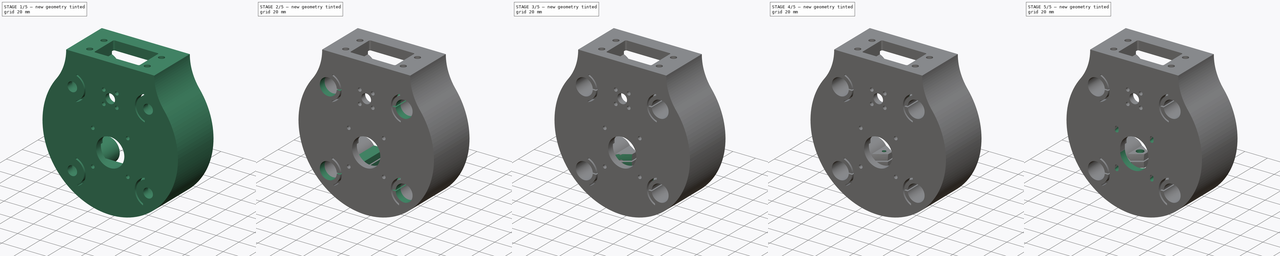
[diagram: build sequence overview — one tinted view per stage of 5, left to right]
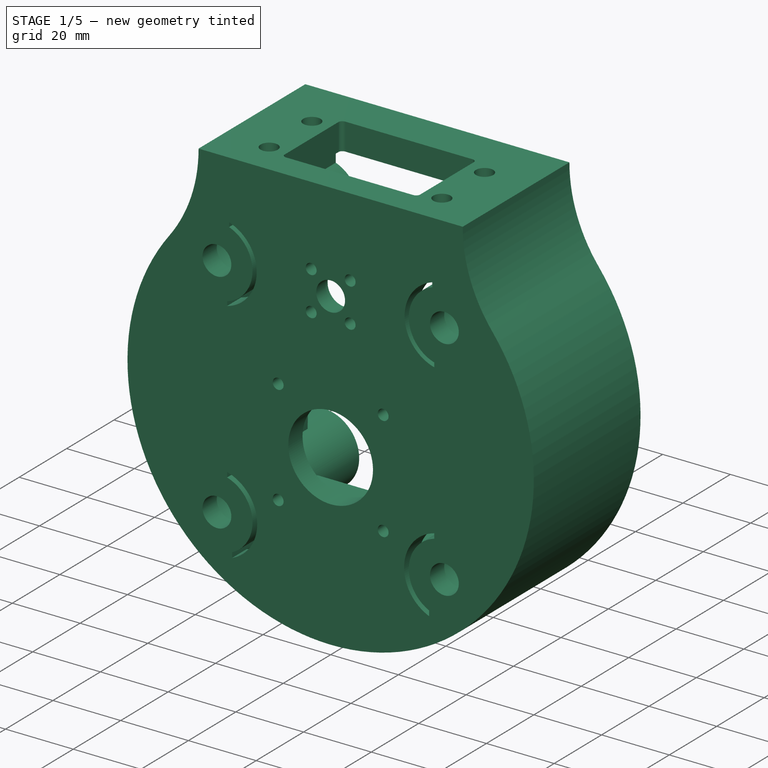
[diagram: stage 1 of 5 — iso view after this stage's code; geometry added in this stage tinted green]
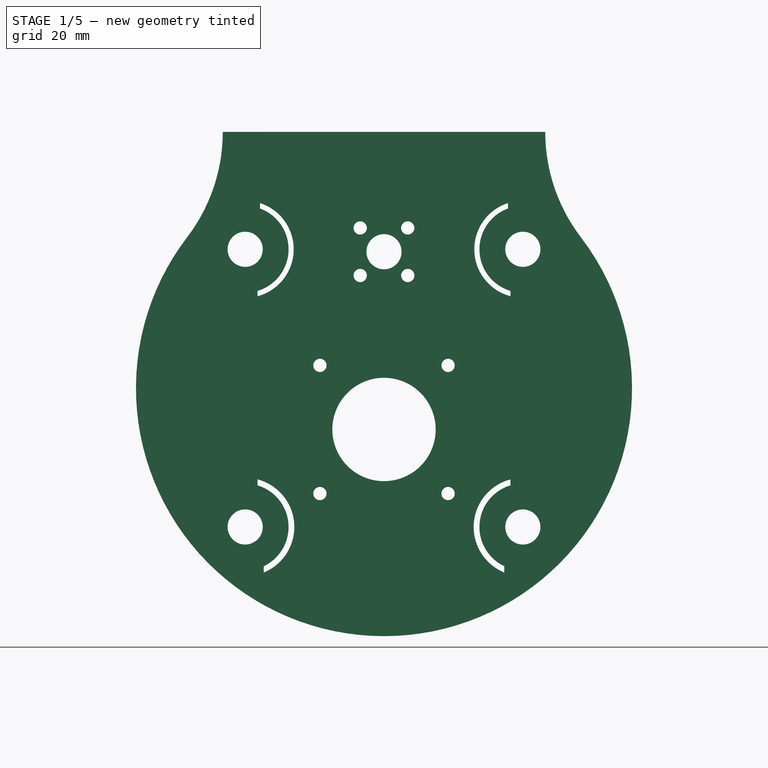
[diagram: stage 1 of 5 — front view after this stage's code; geometry added in this stage tinted green]
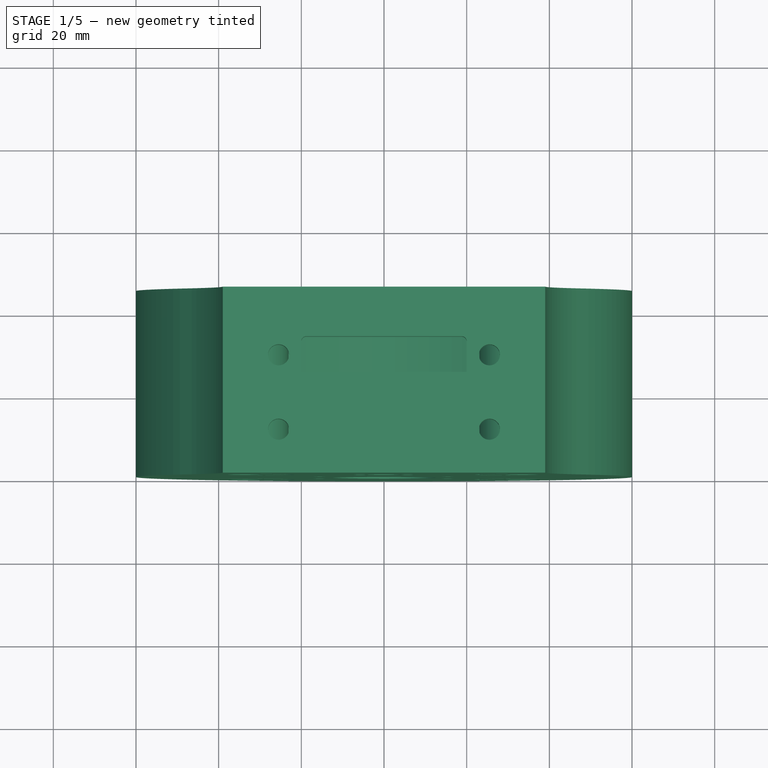
[diagram: stage 1 of 5 — top view after this stage's code; geometry added in this stage tinted green]
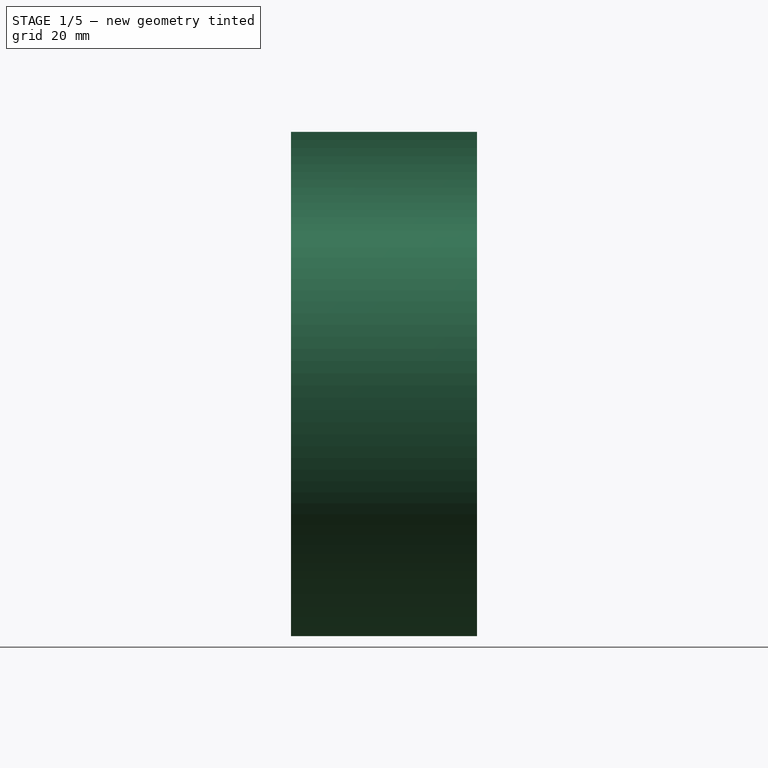
[diagram: stage 1 of 5 — right view after this stage's code; geometry added in this stage tinted green]
FCSTD DOCUMENT  (FreeCAD 0.19R)
Label: Z-axis_mount_platform_LM8
License: All rights reserved
LicenseURL: http://en.wikipedia.org/wiki/All_rights_reserved
objects: Sketcher::SketchObject×10, PartDesign::Pocket×7, PartDesign::Mirrored×6, PartDesign::Line×2, PartDesign::Groove×2, Part::Feature×1, PartDesign::FeatureBase×1, PartDesign::Pad×1, PartDesign::Plane×1, PartDesign::Body×1
note: 42 computed .brp shape members not serialized (recipe doc carries the construction recipe); baked Part::Feature solids carry a one-line shape summary decoded from their .brp

FEATURE [Part::Feature] Part__Feature  label="Z-axis Mount Platform LM8_Z-axis Mount Platform"
  shape: bbox 120 x 45 x 122 mm, 110 faces (baked)
FEATURE [PartDesign::FeatureBase] BaseFeature
  BaseFeature = -> Part__Feature
FEATURE [Sketcher::SketchObject] Sketch
  ExternalGeometry = -> [BaseFeature]
  FullyConstrained = false
  MapMode = 5
  Placement = pos=(0,45,0) rot=(0,0.707107,0.707107;3.14159rad)
  Support = -> [BaseFeature]
  sketch-geometry (8):
    g0: ArcOfCircle CenterX=-33.5876 CenterY=33.5876 CenterZ=0 NormalX=0 NormalY=0 NormalZ=1 AngleXU=0 Radius=11.7431 StartAngle=4.97072 EndAngle=7.54351
    g1: ArcOfCircle CenterX=-33.5876 CenterY=33.5876 CenterZ=0 NormalX=0 NormalY=0 NormalZ=1 AngleXU=0 Radius=10.5 StartAngle=5.00214 EndAngle=7.50528
    g2: LineSegment StartX=-30.5876 StartY=23.5253 StartZ=0 EndX=-30.5876 EndY=22.2342 EndZ=0
    g3: LineSegment StartX=-30 StartY=44.7692 StartZ=0 EndX=-30 EndY=43.4557 EndZ=0
    g4: ArcOfCircle CenterX=-33.5876 CenterY=-33.5876 CenterZ=0 NormalX=0 NormalY=0 NormalZ=1 AngleXU=0 Radius=11.8969 StartAngle=5.10007 EndAngle=7.59927
    g5: LineSegment StartX=-30.59 StartY=-22.0745 StartZ=0 EndX=-30.59 EndY=-23.5245 EndZ=0
    g6: ArcOfCircle CenterX=-33.5876 CenterY=-33.5876 CenterZ=0 NormalX=0 NormalY=0 NormalZ=1 AngleXU=0 Radius=10.5 StartAngle=5.15504 EndAngle=7.56447
    g7: LineSegment StartX=-29.09 StartY=-44.6015 StartZ=0 EndX=-29.09 EndY=-43.0756 EndZ=0
  constraints (24):
    c: Coincident(g0,g-3)
    c: Coincident(g1,g0)
    c: Coincident(g2,g1)
    c: Coincident(g2,g0)
    c: Coincident(g3,g0)
    c: Coincident(g3,g1)
    c: Vertical(g3)
    c: Vertical(g2)
    c: Radius(g1) = 10.5
    c: Coincident(g5,g4)
    c: Vertical(g5)
    c: Coincident(g6,g4)
    c: Coincident(g6,g5)
    c: Radius(g6) = 10.5
    c: DistanceX(g0) = -33.5876
    c: DistanceY(g0) = 33.5876
    c: DistanceX(g4) = -33.5876
    c: DistanceY(g4) = -33.5876
    c: DistanceX(g4) = -30.59
    c: DistanceY(g5,g5) = 1.45
    c: Coincident(g7,g4)
    c: Coincident(g7,g6)
    c: Vertical(g7)
    c: DistanceX(g4) = -29.09
FEATURE [PartDesign::Pocket] Pocket
  BaseFeature = -> BaseFeature
  Length = 5
  Length2 = 100
  Profile = -> Sketch
  Type = 1
FEATURE [PartDesign::Mirrored] Mirrored
  BaseFeature = -> Pocket
  MirrorPlane = -> Sketch [V_Axis]
  Originals = -> [Pocket]
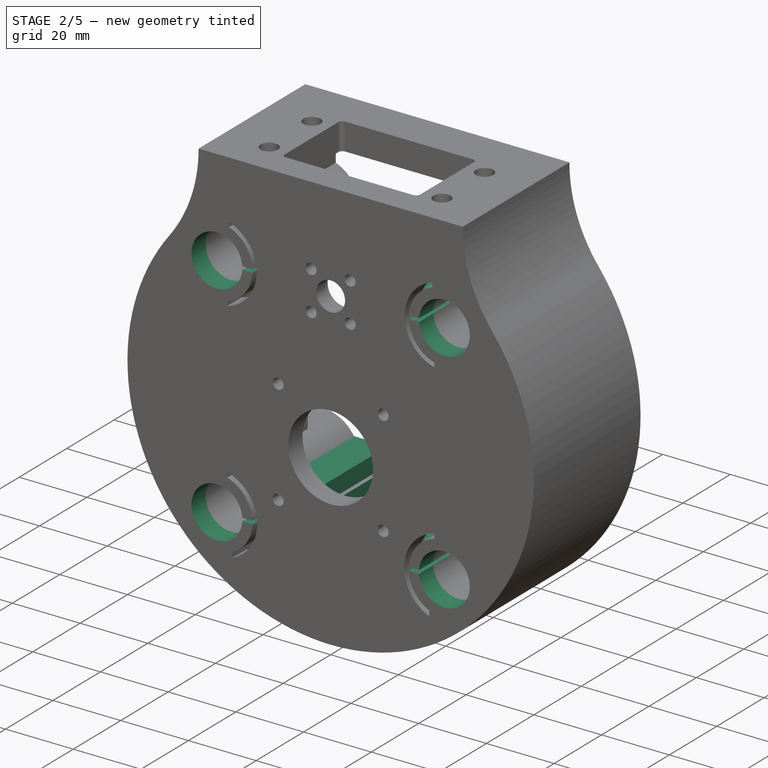
[diagram: stage 2 of 5 — iso view after this stage's code; geometry added in this stage tinted green]
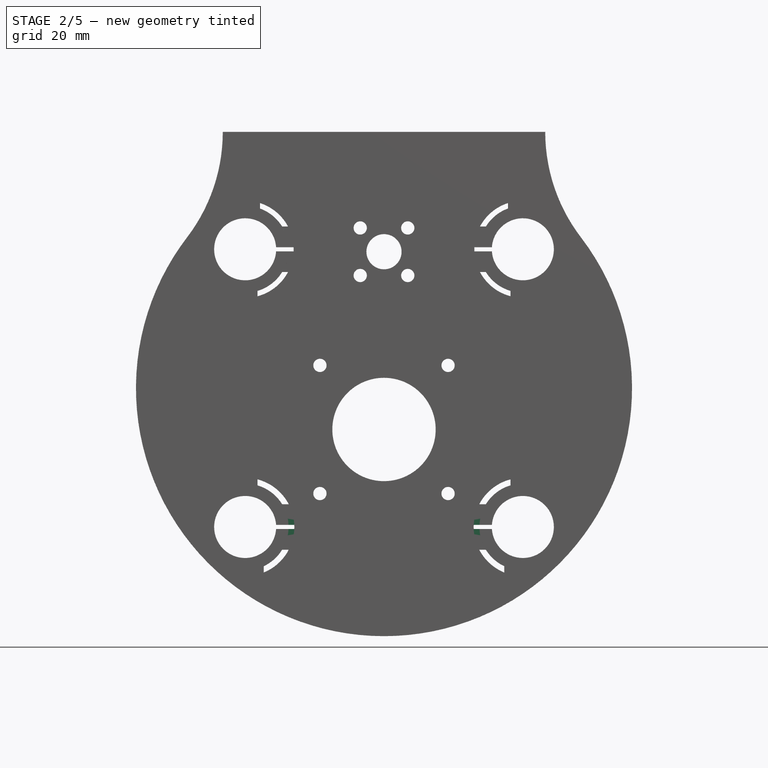
[diagram: stage 2 of 5 — front view after this stage's code; geometry added in this stage tinted green]
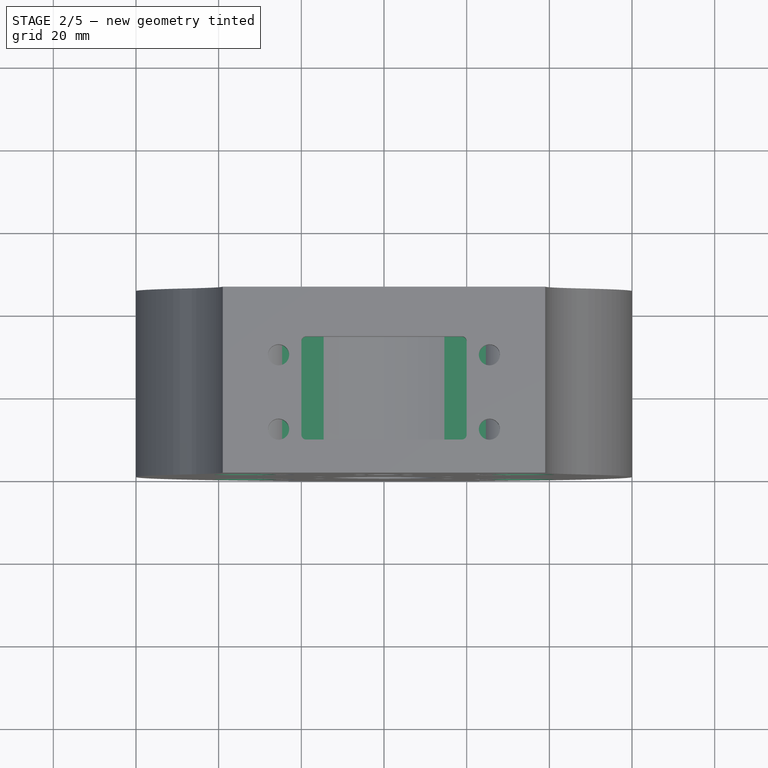
[diagram: stage 2 of 5 — top view after this stage's code; geometry added in this stage tinted green]
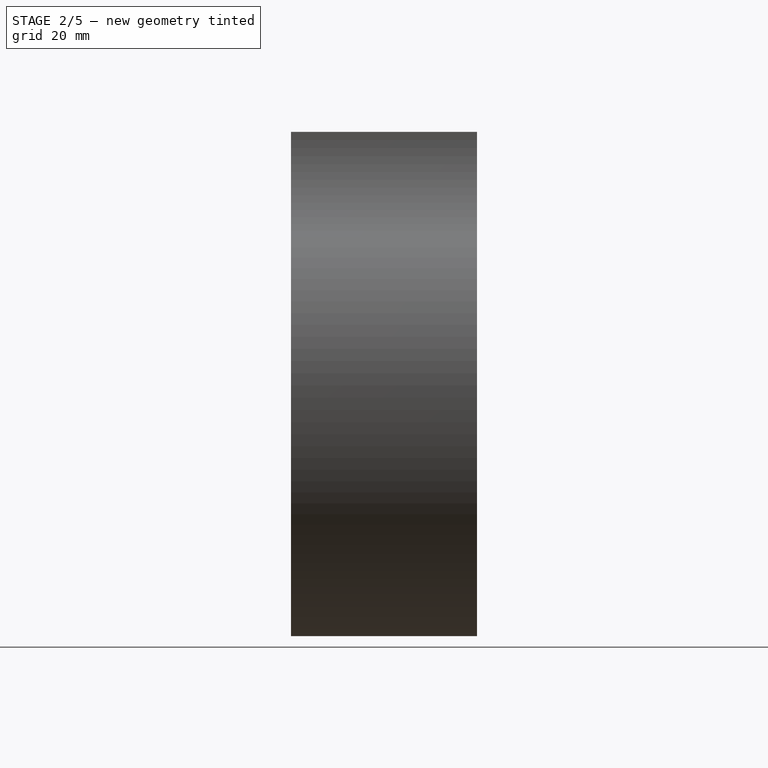
[diagram: stage 2 of 5 — right view after this stage's code; geometry added in this stage tinted green]
FEATURE [PartDesign::Pocket] Pocket001
  BaseFeature = -> Mirrored
  Length = 20
  Length2 = 100
  Profile = -> Mirrored [Face112]
  Type = 0
FEATURE [Sketcher::SketchObject] Sketch001
  ExternalGeometry = -> [Pocket001]
  FullyConstrained = true
  MapMode = 5
  Placement = pos=(0,45,0) rot=(0,0.707107,0.707107;3.14159rad)
  Support = -> [Pocket001]
  sketch-geometry (17):
    g0: LineSegment StartX=-26.1043 StartY=34.0876 StartZ=0 EndX=-22.5 EndY=34.0876 EndZ=0
    g1: LineSegment StartX=-22.5 StartY=34.0876 StartZ=0 EndX=-22.5 EndY=33.0876 EndZ=0
    g2: LineSegment StartX=-22.5 StartY=33.0876 StartZ=0 EndX=-26.1043 EndY=33.0876 EndZ=0
    g3: LineSegment StartX=22.5 StartY=34.0876 StartZ=0 EndX=26.1043 EndY=34.0876 EndZ=0
    g4: LineSegment StartX=26.1043 StartY=33.0876 StartZ=0 EndX=22.5 EndY=33.0876 EndZ=0
    g5: LineSegment StartX=22.5 StartY=33.0876 StartZ=0 EndX=22.5 EndY=34.0876 EndZ=0
    g6: LineSegment StartX=-26.1043 StartY=-33.0876 StartZ=0 EndX=-22.5 EndY=-33.0876 EndZ=0
    g7: LineSegment StartX=-22.5 StartY=-33.0876 StartZ=0 EndX=-22.5 EndY=-34.0876 EndZ=0
    g8: LineSegment StartX=-22.5 StartY=-34.0876 StartZ=0 EndX=-26.1043 EndY=-34.0876 EndZ=0
    g9: LineSegment StartX=22.5 StartY=-33.0876 StartZ=0 EndX=26.1043 EndY=-33.0876 EndZ=0
    g10: LineSegment StartX=26.1043 StartY=-34.0876 StartZ=0 EndX=22.5 EndY=-34.0876 EndZ=0
    g11: LineSegment StartX=22.5 StartY=-34.0876 StartZ=0 EndX=22.5 EndY=-33.0876 EndZ=0
    g12: ArcOfCircle CenterX=-33.5876 CenterY=33.5876 CenterZ=0 NormalX=0 NormalY=0 NormalZ=1 AngleXU=0 Radius=7.5 StartAngle=0.0667161 EndAngle=6.21647
    g13: ArcOfCircle CenterX=33.5876 CenterY=33.5876 CenterZ=0 NormalX=0 NormalY=0 NormalZ=1 AngleXU=0 Radius=7.5 StartAngle=3.20831 EndAngle=9.35806
    g14: ArcOfCircle CenterX=33.5876 CenterY=-33.5876 CenterZ=0 NormalX=0 NormalY=0 NormalZ=1 AngleXU=0 Radius=7.5 StartAngle=3.20831 EndAngle=9.35806
    g15: ArcOfCircle CenterX=-33.5876 CenterY=-33.5876 CenterZ=0 NormalX=0 NormalY=0 NormalZ=1 AngleXU=0 Radius=7.5 StartAngle=0.0667161 EndAngle=6.21647
    g16: LineSegment StartX=-33.5876 StartY=33.5876 StartZ=0 EndX=-22.5 EndY=33.5876 EndZ=0
  constraints (47):
    c: Coincident(g0,g1)
    c: Coincident(g1,g2)
    c: Horizontal(g0)
    c: Horizontal(g2)
    c: Vertical(g1)
    c: Coincident(g4,g5)
    c: Coincident(g5,g3)
    c: Horizontal(g3)
    c: Horizontal(g4)
    c: Vertical(g5)
    c: Coincident(g6,g7)
    c: Coincident(g7,g8)
    c: Horizontal(g6)
    c: Horizontal(g8)
    c: Vertical(g7)
    c: Coincident(g10,g11)
    c: Coincident(g11,g9)
    c: Horizontal(g9)
    c: Horizontal(g10)
    c: Vertical(g11)
    c: Coincident(g12,g-3)
    c: Coincident(g13,g-4)
    c: Coincident(g14,g-6)
    c: Coincident(g15,g-5)
    c: PointOnObject(g3,g0)
    c: Symmetric(g6,g1,g-1)
    c: Equal(g5,g11)
    c: Equal(g11,g7)
    c: DistanceY(g1,g1) = 1
    c: Radius(g12) = 7.5
    c: Equal(g12,g13)
    c: Equal(g13,g15)
    c: Equal(g15,g14)
    c: Symmetric(g4,g1,g-2)
    c: DistanceX(g0,g3) = 45
    c: Coincident(g16,g12)
    c: Horizontal(g16)
    c: Symmetric(g0,g1,g16)
    c: Coincident(g12,g0)
    c: Coincident(g12,g2)
    c: Coincident(g13,g4)
    c: Coincident(g13,g3)
    c: Coincident(g14,g10)
    c: Coincident(g14,g9)
    c: Coincident(g15,g6)
    c: Coincident(g15,g8)
    c: Symmetric(g6,g9,g-2)
FEATURE [PartDesign::Pocket] Pocket002
  BaseFeature = -> Pocket001
  Length = 5
  Length2 = 100
  Profile = -> Sketch001
  Type = 1
FEATURE [Sketcher::SketchObject] Sketch002
  ExternalGeometry = -> [Pocket002]
  FullyConstrained = true
  MapMode = 5
  Placement = pos=(0,45,0) rot=(0,0.707107,0.707107;3.14159rad)
  Support = -> [Pocket002]
  sketch-geometry (18):
    g0: LineSegment StartX=-24.6433 StartY=39.0876 StartZ=0 EndX=-14.5995 EndY=39.0876 EndZ=0
    g1: LineSegment StartX=-14.5995 StartY=39.0876 StartZ=0 EndX=-14.5995 EndY=34.0876 EndZ=0
    g2: LineSegment StartX=-14.5995 StartY=34.0876 StartZ=0 EndX=-23.0995 EndY=34.0876 EndZ=0
    g3: LineSegment StartX=-23.0995 StartY=34.0876 StartZ=0 EndX=-23.0995 EndY=33.0876 EndZ=0
    g4: LineSegment StartX=-23.0995 StartY=33.0876 StartZ=0 EndX=-14.5995 EndY=33.0876 EndZ=0
    g5: LineSegment StartX=-14.5995 StartY=33.0876 StartZ=0 EndX=-14.5995 EndY=28.0876 EndZ=0
    g6: LineSegment StartX=-14.5995 StartY=28.0876 StartZ=0 EndX=-24.6433 EndY=28.0876 EndZ=0
    g7: ArcOfCircle CenterX=-33.5876 CenterY=33.5876 CenterZ=0 NormalX=0 NormalY=0 NormalZ=1 AngleXU=0 Radius=10.5 StartAngle=0.0476371 EndAngle=0.551317
    g8: ArcOfCircle CenterX=-33.5876 CenterY=33.5876 CenterZ=0 NormalX=0 NormalY=0 NormalZ=1 AngleXU=0 Radius=10.5 StartAngle=5.73187 EndAngle=6.23555
    g9: LineSegment StartX=-23.0995 StartY=-33.0876 StartZ=0 EndX=-14.5995 EndY=-33.0876 EndZ=0
    g10: LineSegment StartX=-14.5995 StartY=-33.0876 StartZ=0 EndX=-14.5995 EndY=-28.0876 EndZ=0
    g11: LineSegment StartX=-14.5995 StartY=-28.0876 StartZ=0 EndX=-24.6433 EndY=-28.0876 EndZ=0
    g12: LineSegment StartX=-23.0995 StartY=-33.0876 StartZ=0 EndX=-23.0995 EndY=-34.0876 EndZ=0
    g13: LineSegment StartX=-23.0995 StartY=-34.0876 StartZ=0 EndX=-14.5995 EndY=-34.0876 EndZ=0
    g14: LineSegment StartX=-14.5995 StartY=-34.0876 StartZ=0 EndX=-14.5995 EndY=-39.0876 EndZ=0
    g15: LineSegment StartX=-14.5995 StartY=-39.0876 StartZ=0 EndX=-24.6433 EndY=-39.0876 EndZ=0
    g16: ArcOfCircle CenterX=-33.5876 CenterY=-33.5876 CenterZ=0 NormalX=0 NormalY=0 NormalZ=1 AngleXU=0 Radius=10.5 StartAngle=0.0476371 EndAngle=0.551317
    g17: ArcOfCircle CenterX=-33.5876 CenterY=-33.5876 CenterZ=0 NormalX=0 NormalY=0 NormalZ=1 AngleXU=0 Radius=10.5 StartAngle=5.73187 EndAngle=6.23555
  constraints (50):
    c: Horizontal(g0)
    c: Coincident(g0,g1)
    c: Vertical(g1)
    c: Coincident(g1,g2)
    c: Horizontal(g2)
    c: Coincident(g2,g3)
    c: Vertical(g3)
    c: Coincident(g3,g4)
    c: Horizontal(g4)
    c: Coincident(g4,g5)
    c: Vertical(g5)
    c: Coincident(g5,g6)
    c: Horizontal(g6)
    c: Coincident(g2,g-4)
    c: DistanceY(g3,g3) = 1
    c: Coincident(g7,g-3)
    c: Coincident(g7,g2)
    c: Coincident(g7,g0)
    c: Coincident(g8,g7)
    c: Coincident(g8,g6)
    c: Coincident(g8,g4)
    c: DistanceY(g1,g1) = 5
    c: Equal(g5,g1)
    c: PointOnObject(g4,g1)
    c: DistanceX(g2,g2) = 8.5
    c: Coincident(g-6,g9)
    c: Horizontal(g9)
    c: Coincident(g9,g10)
    c: Vertical(g10)
    c: Coincident(g10,g11)
    c: Horizontal(g11)
    c: Coincident(g9,g12)
    c: Vertical(g12)
    c: Coincident(g12,g13)
    c: Horizontal(g13)
    c: Coincident(g13,g14)
    c: Coincident(g14,g15)
    c: Horizontal(g15)
    c: Coincident(g16,g-5)
    c: Coincident(g16,g11)
    c: Coincident(g16,g9)
    c: Coincident(g17,g16)
    c: Coincident(g17,g12)
    c: Coincident(g17,g15)
    c: Vertical(g14)
    c: PointOnObject(g13,g10)
    c: DistanceY(g10,g10) = 5
    c: Equal(g10,g14)
    c: DistanceY(g12,g12) = 1
    c: PointOnObject(g10,g5)
FEATURE [PartDesign::Pad] Pad
  BaseFeature = -> Pocket002
  Direction = (1,1,1)
  Length = 38.99
  Length2 = 100
  Profile = -> Sketch002
  Reversed = true
  Type = 0
FEATURE [PartDesign::Mirrored] Mirrored001
  BaseFeature = -> Pad
  MirrorPlane = -> Sketch002 [V_Axis]
  Originals = -> [Pad]
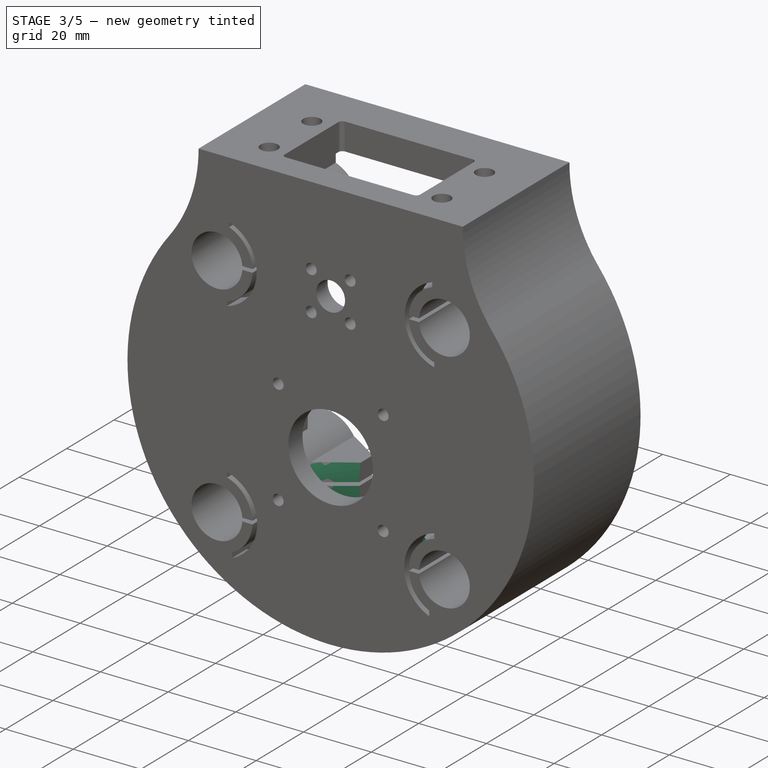
[diagram: stage 3 of 5 — iso view after this stage's code; geometry added in this stage tinted green]
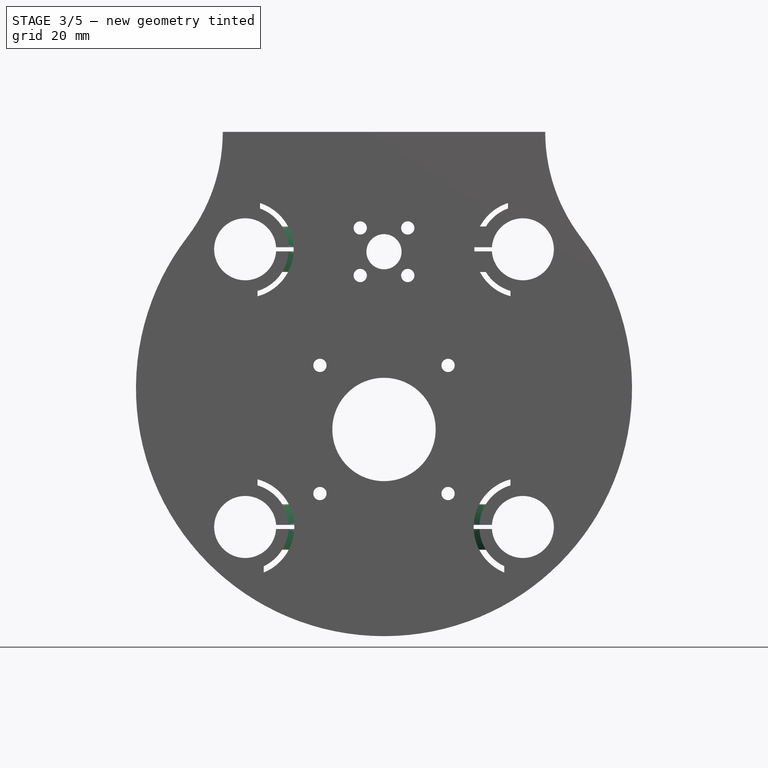
[diagram: stage 3 of 5 — front view after this stage's code; geometry added in this stage tinted green]
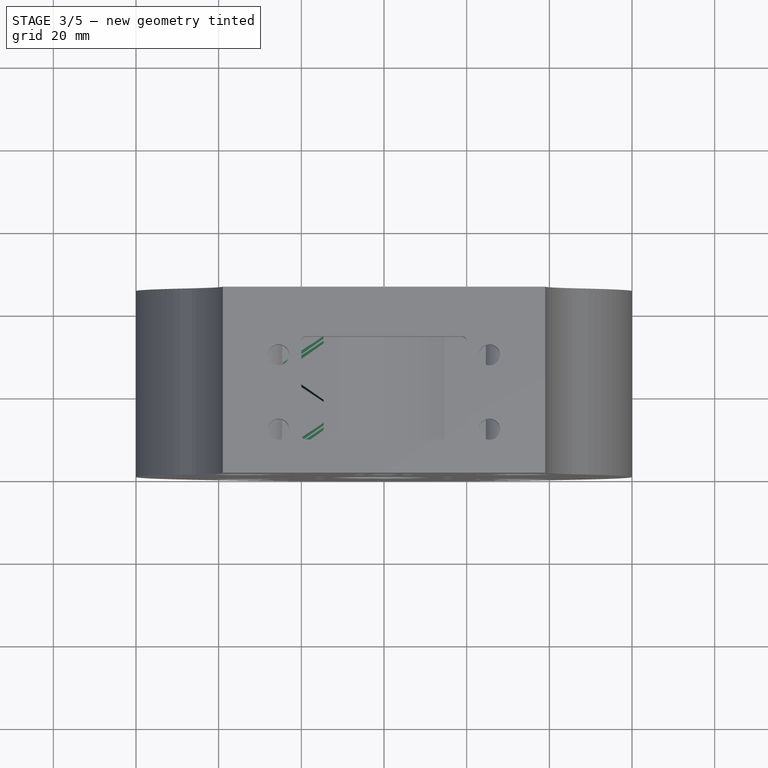
[diagram: stage 3 of 5 — top view after this stage's code; geometry added in this stage tinted green]
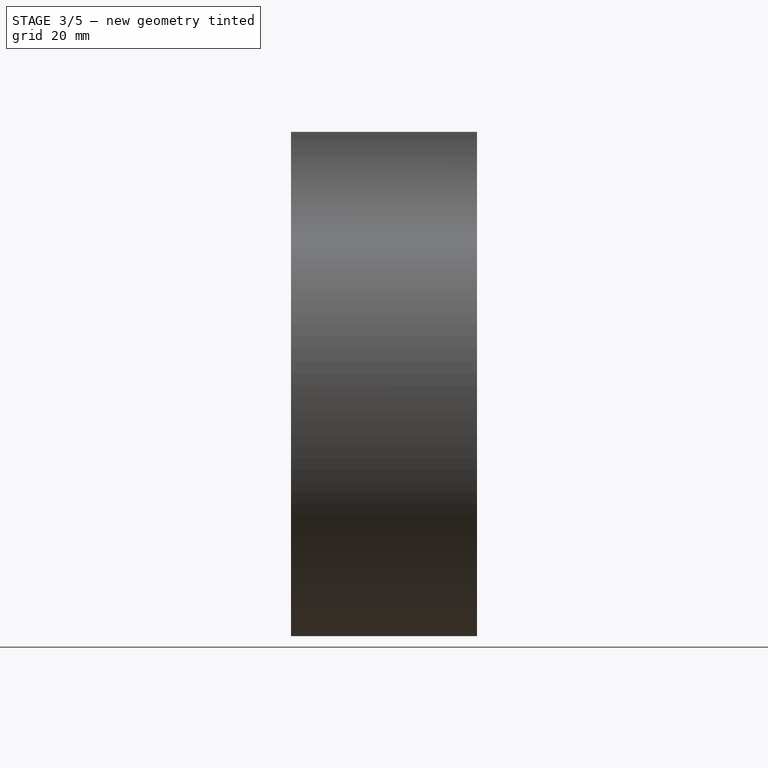
[diagram: stage 3 of 5 — right view after this stage's code; geometry added in this stage tinted green]
FEATURE [PartDesign::Plane] DatumPlane
  AttachmentOffset = pos=(0,0,0.5) rot=(0,0,1;0rad)
  Length = 138.268
  MapMode = 5
  Placement = pos=(0,-7.4e-15,-33.5876) rot=(0,0,1;0rad)
  ResizeMode = 0
  Support = -> [Mirrored001]
  Width = 88.3259
FEATURE [Sketcher::SketchObject] Sketch003
  ExternalGeometry = -> [Mirrored001]
  FullyConstrained = true
  MapMode = 5
  Placement = pos=(0,-7.4e-15,-33.5876) rot=(0,0,1;0rad)
  Support = -> [DatumPlane]
  sketch-geometry (2):
    g0: LineSegment StartX=-33.5876 StartY=45 StartZ=0 EndX=-33.5876 EndY=0 EndZ=0
    g1: LineSegment StartX=33.5876 StartY=45 StartZ=0 EndX=33.5876 EndY=0 EndZ=0
  constraints (6):
    c: Coincident(g0,g-3)
    c: PointOnObject(g0,g-1)
    c: Vertical(g0)
    c: Coincident(g1,g-4)
    c: PointOnObject(g1,g-1)
    c: Vertical(g1)
FEATURE [PartDesign::Line] DatumLine
  AttacherType = Attacher::AttachEngineLine
  Length = 20
  MapMode = 29
  Placement = pos=(-33.5876,-7.1e-15,-33.5876) rot=(1,0,0;1.5708rad)
  ResizeMode = 0
  Support = -> [Sketch003]
FEATURE [PartDesign::Line] DatumLine001
  AttacherType = Attacher::AttachEngineLine
  Length = 20
  MapMode = 29
  Placement = pos=(33.5876,-7.1e-15,-33.5876) rot=(1,0,0;1.5708rad)
  ResizeMode = 0
  Support = -> [Sketch003]
FEATURE [Sketcher::SketchObject] Sketch004
  ExternalGeometry = -> [Mirrored001]
  FullyConstrained = true
  MapMode = 5
  Placement = pos=(0,-7.4e-15,-33.5876) rot=(0,0,1;0rad)
  Support = -> [DatumPlane]
  sketch-geometry (14):
    g0: LineSegment StartX=-23.0776 StartY=45 StartZ=0 EndX=-13.5776 EndY=45 EndZ=0
    g1: LineSegment StartX=-13.5776 StartY=45 StartZ=0 EndX=-13.5776 EndY=38.348 EndZ=0
    g2: LineSegment StartX=-13.5776 StartY=38.348 StartZ=0 EndX=-23.0776 EndY=45 EndZ=0
    g3: LineSegment StartX=-23.0776 StartY=45 StartZ=0 EndX=-23.0776 EndY=27.005 EndZ=0
    g4: LineSegment StartX=-23.0776 StartY=27.005 StartZ=0 EndX=-13.5776 EndY=33.657 EndZ=0
    g5: LineSegment StartX=-13.5776 StartY=33.657 StartZ=0 EndX=-13.5776 EndY=17.353 EndZ=0
    g6: LineSegment StartX=-13.5776 StartY=17.353 StartZ=0 EndX=-23.0776 EndY=24.005 EndZ=0
    g7: LineSegment StartX=-23.0776 StartY=24.005 StartZ=0 EndX=-23.0776 EndY=27.005 EndZ=0
    g8: LineSegment StartX=-23.0776 StartY=24.005 StartZ=0 EndX=-23.0776 EndY=6.01 EndZ=0
    g9: LineSegment StartX=-23.0776 StartY=6.01 StartZ=0 EndX=-13.5776 EndY=6.01 EndZ=0
    g10: LineSegment StartX=-13.5776 StartY=6.01 StartZ=0 EndX=-13.5776 EndY=12.662 EndZ=0
    g11: LineSegment StartX=-13.5776 StartY=12.662 StartZ=0 EndX=-23.0776 EndY=6.01 EndZ=0
    g12: LineSegment StartX=-13.5776 StartY=12.662 StartZ=0 EndX=-13.5776 EndY=17.353 EndZ=0
    g13: LineSegment StartX=-13.5776 StartY=33.657 StartZ=0 EndX=-13.5776 EndY=38.348 EndZ=0
  constraints (38):
    c: Coincident(g0,g1)
    c: Vertical(g1)
    c: Coincident(g1,g2)
    c: Coincident(g2,g0)
    c: Coincident(g0,g3)
    c: Vertical(g3)
    c: Coincident(g3,g4)
    c: Coincident(g4,g5)
    c: Vertical(g5)
    c: Coincident(g5,g6)
    c: Coincident(g6,g7)
    c: Coincident(g7,g3)
    c: Vertical(g7)
    c: Coincident(g6,g8)
    c: Vertical(g8)
    c: Coincident(g8,g9)
    c: Coincident(g9,g10)
    c: Vertical(g10)
    c: Coincident(g10,g11)
    c: Coincident(g11,g8)
    c: Coincident(g12,g10)
    c: Coincident(g12,g5)
    c: Vertical(g12)
    c: Coincident(g13,g4)
    c: Vertical(g13)
    c: Coincident(g1,g13)
    c: Equal(g3,g8)
    c: Equal(g13,g12)
    c: Equal(g1,g10)
    c: Horizontal(g0)
    c: Horizontal(g9)
    c: DistanceY(g7,g7) = 3
    c: DistanceY(g9,g0) = 38.99
    c: Angle(g9,g11) = 0.610865
    c: DistanceX(g0,g0) = 9.5
    c: DistanceY(g9) = 6.01
    c: Angle(g6,g11) = 1.22173
    c: DistanceX(g-3,g0) = 10.51
FEATURE [PartDesign::Groove] Groove
  Angle = 90
  Axis = (0,-1,2e-16)
  Base = (-33.5876,-7.1e-15,-33.5876)
  BaseFeature = -> Mirrored001
  Midplane = true
  Profile = -> Sketch004
  ReferenceAxis = -> DatumLine
  Reversed = true
FEATURE [PartDesign::Mirrored] Mirrored002
  BaseFeature = -> Groove
  MirrorPlane = -> XY_Plane
  Originals = -> [Groove]
FEATURE [Sketcher::SketchObject] Sketch005
  ExternalGeometry = -> [Mirrored002]
  FullyConstrained = true
  MapMode = 5
  Placement = pos=(0,-7.4e-15,-33.5876) rot=(0,0,1;0rad)
  Support = -> [DatumPlane]
  sketch-geometry (14):
    g0: LineSegment StartX=23.0776 StartY=45 StartZ=0 EndX=13.5776 EndY=45 EndZ=0
    g1: LineSegment StartX=13.5776 StartY=45 StartZ=0 EndX=13.5776 EndY=38.348 EndZ=0
    g2: LineSegment StartX=13.5776 StartY=38.348 StartZ=0 EndX=23.0776 EndY=45 EndZ=0
    g3: LineSegment StartX=23.0776 StartY=45 StartZ=0 EndX=23.0776 EndY=27.005 EndZ=0
    g4: LineSegment StartX=23.0776 StartY=27.005 StartZ=0 EndX=13.5776 EndY=33.657 EndZ=0
    g5: LineSegment StartX=13.5776 StartY=33.657 StartZ=0 EndX=13.5776 EndY=17.353 EndZ=0
    g6: LineSegment StartX=13.5776 StartY=17.353 StartZ=0 EndX=23.0776 EndY=24.005 EndZ=0
    g7: LineSegment StartX=23.0776 StartY=24.005 StartZ=0 EndX=23.0776 EndY=6.01 EndZ=0
    g8: LineSegment StartX=23.0776 StartY=6.01 StartZ=0 EndX=13.5776 EndY=6.01 EndZ=0
    g9: LineSegment StartX=13.5776 StartY=6.01 StartZ=0 EndX=13.5776 EndY=12.662 EndZ=0
    g10: LineSegment StartX=13.5776 StartY=12.662 StartZ=0 EndX=23.0776 EndY=6.01 EndZ=0
    g11: LineSegment StartX=13.5776 StartY=38.348 StartZ=0 EndX=13.5776 EndY=33.657 EndZ=0
    g12: LineSegment StartX=13.5776 StartY=17.353 StartZ=0 EndX=13.5776 EndY=12.662 EndZ=0
    g13: LineSegment StartX=23.0776 StartY=27.005 StartZ=0 EndX=23.0776 EndY=24.005 EndZ=0
  constraints (38):
    c: Horizontal(g0)
    c: Coincident(g0,g1)
    c: Vertical(g1)
    c: Coincident(g1,g2)
    c: Coincident(g2,g0)
    c: Coincident(g0,g3)
    c: Vertical(g3)
    c: Coincident(g3,g4)
    c: Coincident(g4,g5)
    c: Vertical(g5)
    c: Coincident(g5,g6)
    c: Coincident(g6,g7)
    c: Vertical(g7)
    c: Coincident(g7,g8)
    c: Coincident(g8,g9)
    c: Vertical(g9)
    c: Coincident(g9,g10)
    c: Coincident(g10,g7)
    c: Coincident(g11,g1)
    c: Coincident(g11,g4)
    c: Coincident(g12,g5)
    c: Coincident(g12,g9)
    c: Coincident(g13,g3)
    c: Coincident(g13,g6)
    c: Vertical(g13)
    c: Vertical(g12)
    c: Vertical(g11)
    c: Horizontal(g8)
    c: Equal(g11,g12)
    c: Equal(g3,g7)
    c: Angle(g10,g8) = 0.610865
    c: DistanceY(g13,g13) = 3
    c: DistanceY(g8,g0) = 38.99
    c: DistanceY(g8) = 6.01
    c: DistanceX(g0,g0) = 9.5
    c: Equal(g1,g9)
    c: DistanceX(g0,g-3) = 10.51
    c: Angle(g10,g6) = 1.22173
FEATURE [PartDesign::Groove] Groove001
  Angle = 90
  Axis = (0,-1,2e-16)
  Base = (33.5876,-7.1e-15,-33.5876)
  BaseFeature = -> Mirrored002
  Midplane = true
  Profile = -> Sketch005
  ReferenceAxis = -> DatumLine001
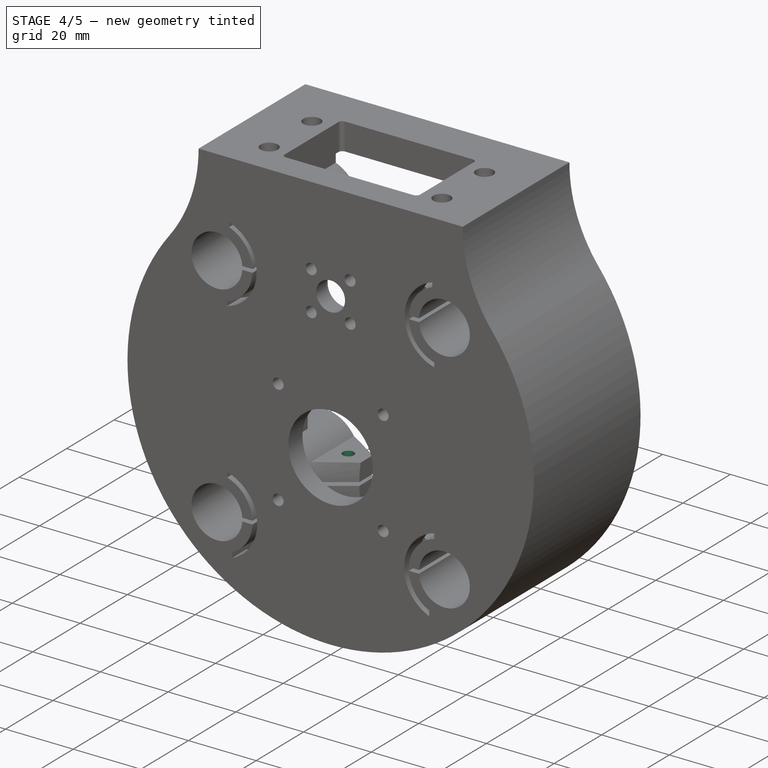
[diagram: stage 4 of 5 — iso view after this stage's code; geometry added in this stage tinted green]
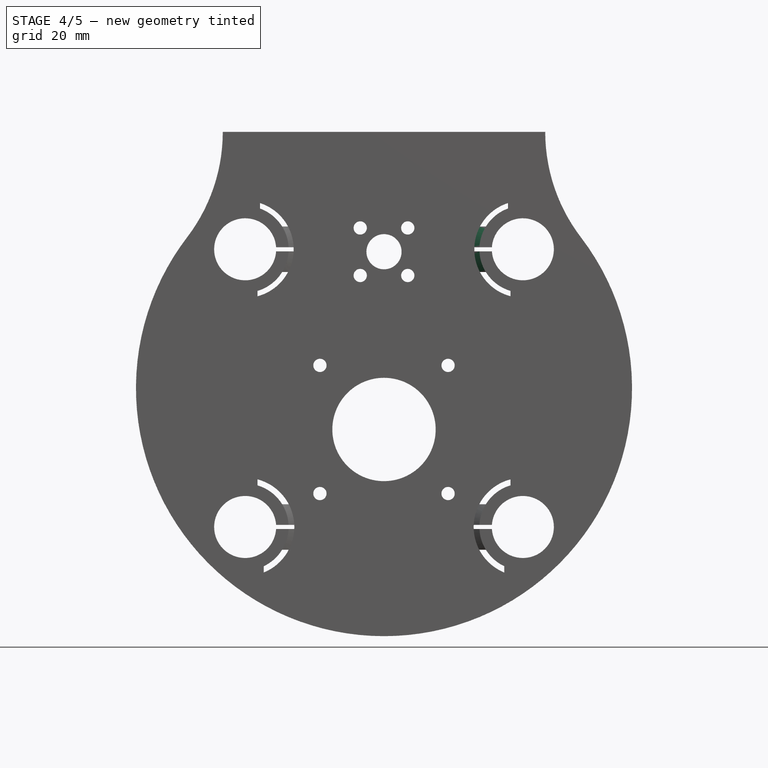
[diagram: stage 4 of 5 — front view after this stage's code; geometry added in this stage tinted green]
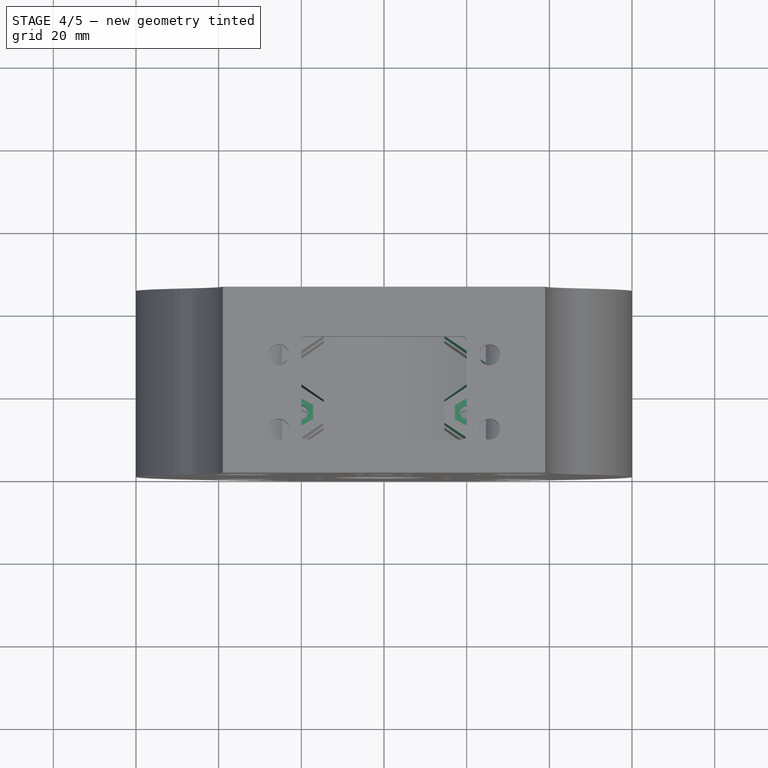
[diagram: stage 4 of 5 — top view after this stage's code; geometry added in this stage tinted green]
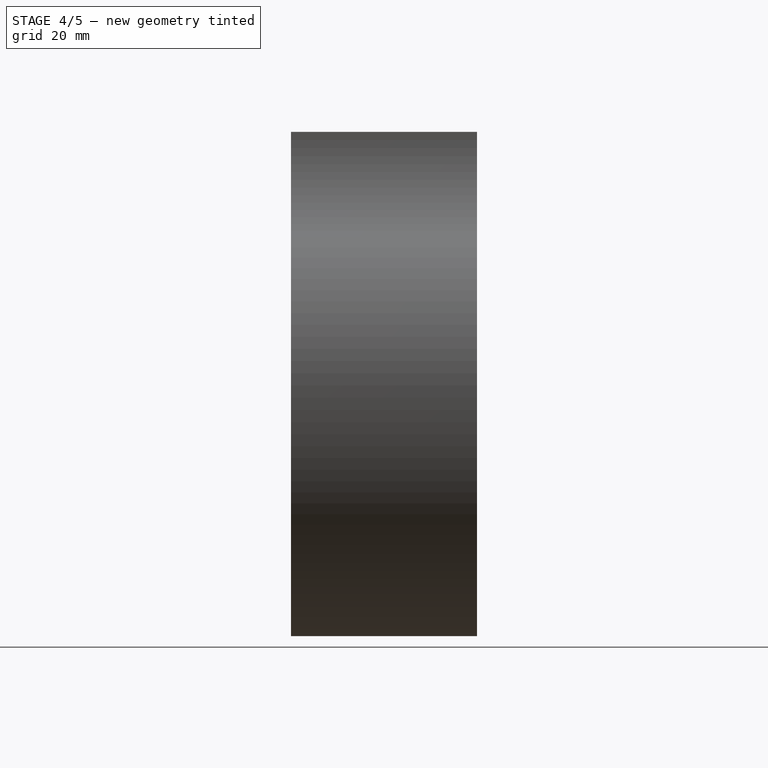
[diagram: stage 4 of 5 — right view after this stage's code; geometry added in this stage tinted green]
FEATURE [PartDesign::Mirrored] Mirrored003
  BaseFeature = -> Groove001
  MirrorPlane = -> XY_Plane
  Originals = -> [Groove001]
FEATURE [Sketcher::SketchObject] Sketch006
  ExternalGeometry = -> [Mirrored003]
  FullyConstrained = true
  MapMode = 5
  Placement = pos=(0,8.6e-15,39.0876) rot=(0,0,1;0rad)
  Support = -> [Mirrored003]
  sketch-geometry (8):
    g0: Circle CenterX=-20 CenterY=36.0171 CenterZ=0 NormalX=0 NormalY=0 NormalZ=1 AngleXU=0 Radius=1.65
    g1: LineSegment StartX=-20 StartY=36.0171 StartZ=0 EndX=20 EndY=36.0171 EndZ=0
    g2: LineSegment StartX=20 StartY=36.0171 StartZ=0 EndX=20 EndY=15.0221 EndZ=0
    g3: LineSegment StartX=20 StartY=15.0221 StartZ=0 EndX=-20 EndY=15.0221 EndZ=0
    g4: LineSegment StartX=-20 StartY=15.0221 StartZ=0 EndX=-20 EndY=36.0171 EndZ=0
    g5: Circle CenterX=20 CenterY=36.0171 CenterZ=0 NormalX=0 NormalY=0 NormalZ=1 AngleXU=0 Radius=1.65
    g6: Circle CenterX=20 CenterY=15.0221 CenterZ=0 NormalX=0 NormalY=0 NormalZ=1 AngleXU=0 Radius=1.65
    g7: Circle CenterX=-20 CenterY=15.0221 CenterZ=0 NormalX=0 NormalY=0 NormalZ=1 AngleXU=0 Radius=1.65
  constraints (21):
    c: Coincident(g1,g2)
    c: Coincident(g2,g3)
    c: Coincident(g3,g4)
    c: Coincident(g4,g1)
    c: Horizontal(g3)
    c: Vertical(g2)
    c: Vertical(g4)
    c: Coincident(g1,g0)
    c: Coincident(g5,g1)
    c: Coincident(g6,g2)
    c: Coincident(g7,g3)
    c: Equal(g0,g7)
    c: Equal(g7,g6)
    c: Equal(g0,g5)
    c: Symmetric(g0,g5,g-2)
    c: DistanceX(g1,g1) = 40
    c: Radius(g5) = 1.65
    c: DistanceY(g-4,g-3) = 20.995
    c: DistanceY(g-3,g-3) = 5.02912
    c: DistanceY(g4,g4) = 20.995
    c: DistanceY(g0,g-3) = 2.5
FEATURE [PartDesign::Pocket] Pocket003
  BaseFeature = -> Mirrored003
  Length = 80
  Length2 = 100
  Profile = -> Sketch006
  Type = 0
FEATURE [Sketcher::SketchObject] Sketch007
  ExternalGeometry = -> [Pocket003]
  FullyConstrained = true
  MapMode = 5
  Placement = pos=(0,8.6e-15,39.0876) rot=(0,0,1;0rad)
  Support = -> [Pocket003]
  sketch-geometry (28):
    g0: LineSegment StartX=-17.15 StartY=34.3716 StartZ=0 EndX=-17.15 EndY=37.6625 EndZ=0
    g1: LineSegment StartX=-17.15 StartY=37.6625 StartZ=0 EndX=-20 EndY=39.308 EndZ=0
    g2: LineSegment StartX=-20 StartY=39.308 StartZ=0 EndX=-22.85 EndY=37.6625 EndZ=0
    g3: LineSegment StartX=-22.85 StartY=37.6625 StartZ=0 EndX=-22.85 EndY=34.3716 EndZ=0
    g4: LineSegment StartX=-22.85 StartY=34.3716 StartZ=0 EndX=-20 EndY=32.7262 EndZ=0
    g5: LineSegment StartX=-20 StartY=32.7262 StartZ=0 EndX=-17.15 EndY=34.3716 EndZ=0
    g6: Circle CenterX=-20 CenterY=36.0171 CenterZ=0 NormalX=0 NormalY=0 NormalZ=1 AngleXU=0 Radius=3.2909
    g7: LineSegment StartX=-17.15 StartY=13.3766 StartZ=0 EndX=-17.15 EndY=16.6675 EndZ=0
    g8: LineSegment StartX=-17.15 StartY=16.6675 StartZ=0 EndX=-20 EndY=18.313 EndZ=0
    g9: LineSegment StartX=-20 StartY=18.313 StartZ=0 EndX=-22.85 EndY=16.6675 EndZ=0
    g10: LineSegment StartX=-22.85 StartY=16.6675 StartZ=0 EndX=-22.85 EndY=13.3766 EndZ=0
    g11: LineSegment StartX=-22.85 StartY=13.3766 StartZ=0 EndX=-20 EndY=11.7312 EndZ=0
    g12: LineSegment StartX=-20 StartY=11.7312 StartZ=0 EndX=-17.15 EndY=13.3766 EndZ=0
    g13: Circle CenterX=-20 CenterY=15.0221 CenterZ=0 NormalX=0 NormalY=0 NormalZ=1 AngleXU=0 Radius=3.2909
    g14: LineSegment StartX=22.85 StartY=34.3716 StartZ=0 EndX=22.85 EndY=37.6625 EndZ=0
    g15: LineSegment StartX=22.85 StartY=37.6625 StartZ=0 EndX=20 EndY=39.308 EndZ=0
    g16: LineSegment StartX=20 StartY=39.308 StartZ=0 EndX=17.15 EndY=37.6625 EndZ=0
    g17: LineSegment StartX=17.15 StartY=37.6625 StartZ=0 EndX=17.15 EndY=34.3716 EndZ=0
    g18: LineSegment StartX=17.15 StartY=34.3716 StartZ=0 EndX=20 EndY=32.7262 EndZ=0
    g19: LineSegment StartX=20 StartY=32.7262 StartZ=0 EndX=22.85 EndY=34.3716 EndZ=0
    g20: Circle CenterX=20 CenterY=36.0171 CenterZ=0 NormalX=0 NormalY=0 NormalZ=1 AngleXU=0 Radius=3.2909
    g21: LineSegment StartX=22.85 StartY=13.3766 StartZ=0 EndX=22.85 EndY=16.6675 EndZ=0
    g22: LineSegment StartX=22.85 StartY=16.6675 StartZ=0 EndX=20 EndY=18.313 EndZ=0
    g23: LineSegment StartX=20 StartY=18.313 StartZ=0 EndX=17.15 EndY=16.6675 EndZ=0
    g24: LineSegment StartX=17.15 StartY=16.6675 StartZ=0 EndX=17.15 EndY=13.3766 EndZ=0
    g25: LineSegment StartX=17.15 StartY=13.3766 StartZ=0 EndX=20 EndY=11.7312 EndZ=0
    g26: LineSegment StartX=20 StartY=11.7312 StartZ=0 EndX=22.85 EndY=13.3766 EndZ=0
    g27: Circle CenterX=20 CenterY=15.0221 CenterZ=0 NormalX=0 NormalY=0 NormalZ=1 AngleXU=0 Radius=3.2909
  constraints (64):
    c: Coincident(g0,g1)
    c: Coincident(g1,g2)
    c: Coincident(g2,g3)
    c: Coincident(g3,g4)
    c: Coincident(g4,g5)
    c: Coincident(g5,g0)
    c: Equal(g0, g1-g5) x5
    c: PointOnObject(g0,g6)
    c: PointOnObject(g1,g6)
    c: PointOnObject(g2,g6)
    c: PointOnObject(g3,g6)
    c: PointOnObject(g4,g6)
    c: PointOnObject(g5,g6)
    c: Coincident(g6,g-3)
    c: Coincident(g7,g8)
    c: Coincident(g8,g9)
    c: Coincident(g9,g10)
    c: Coincident(g10,g11)
    c: Coincident(g11,g12)
    c: Coincident(g12,g7)
    c: Equal(g7, g8-g12) x5
    c: PointOnObject(g7,g13)
    c: PointOnObject(g8,g13)
    c: PointOnObject(g9,g13)
    c: PointOnObject(g10,g13)
    c: PointOnObject(g11,g13)
    c: PointOnObject(g12,g13)
    c: Coincident(g13,g-4)
    c: Coincident(g14,g15)
    c: Coincident(g15,g16)
    c: Coincident(g16,g17)
    c: Coincident(g17,g18)
    c: Coincident(g18,g19)
    c: Coincident(g19,g14)
    c: Equal(g14, g15-g19) x5
    c: PointOnObject(g14,g20)
    c: PointOnObject(g15,g20)
    c: PointOnObject(g16,g20)
    c: PointOnObject(g17,g20)
    c: PointOnObject(g18,g20)
    c: PointOnObject(g19,g20)
    c: Coincident(g20,g-6)
    c: Coincident(g21,g22)
    c: Coincident(g22,g23)
    c: Coincident(g23,g24)
    c: Coincident(g24,g25)
    c: Coincident(g25,g26)
    c: Coincident(g26,g21)
    c: Equal(g21, g22-g26) x5
    c: PointOnObject(g21,g27)
    c: PointOnObject(g22,g27)
    c: PointOnObject(g23,g27)
    c: PointOnObject(g24,g27)
    c: PointOnObject(g25,g27)
    c: PointOnObject(g26,g27)
    c: Coincident(g27,g-5)
    c: Vertical(g17)
    c: Vertical(g24)
    c: Vertical(g0)
    c: Vertical(g7)
    c: Equal(g6,g13)
    c: Equal(g13,g27)
    c: Equal(g27,g20)
    c: DistanceX(g16,g14) = 5.7
FEATURE [PartDesign::Pocket] Pocket004
  BaseFeature = -> Pocket003
  Length = 2.5
  Length2 = 100
  Profile = -> Sketch007
  Type = 0
FEATURE [PartDesign::Mirrored] Mirrored004
  BaseFeature = -> Pocket004
  MirrorPlane = -> XY_Plane
  Originals = -> [Pocket004]
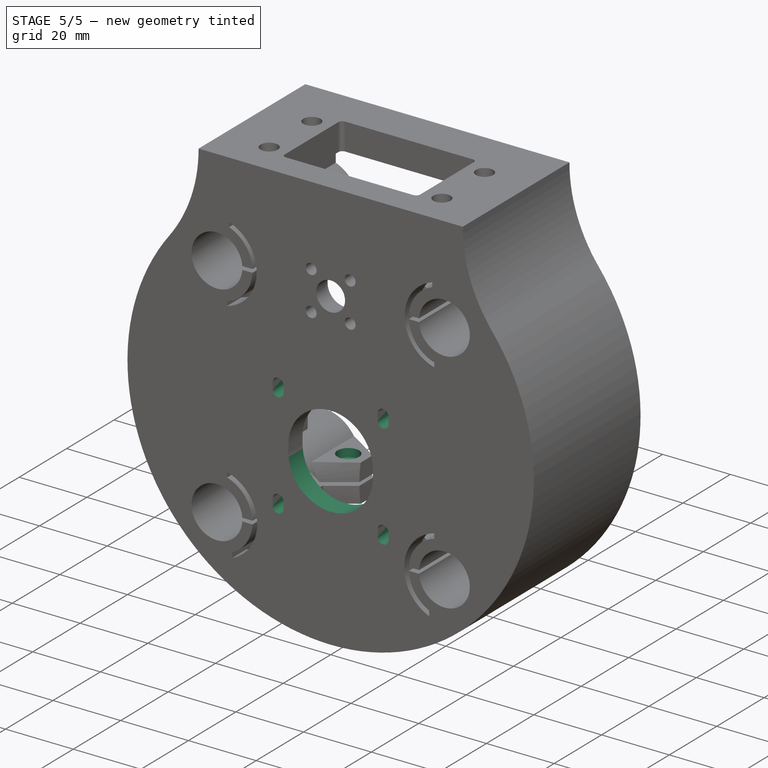
[diagram: stage 5 of 5 — iso view after this stage's code; geometry added in this stage tinted green]
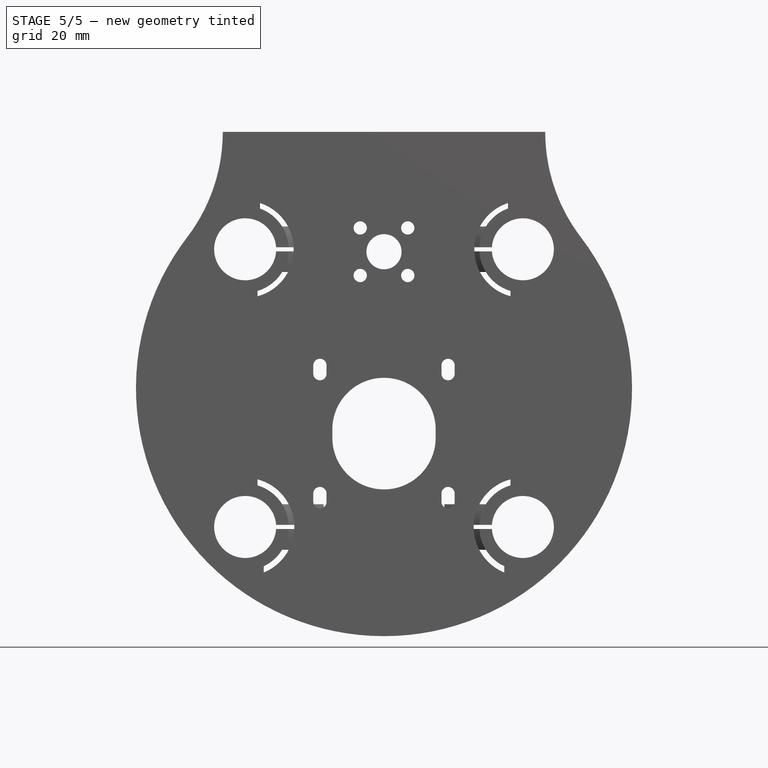
[diagram: stage 5 of 5 — front view after this stage's code; geometry added in this stage tinted green]
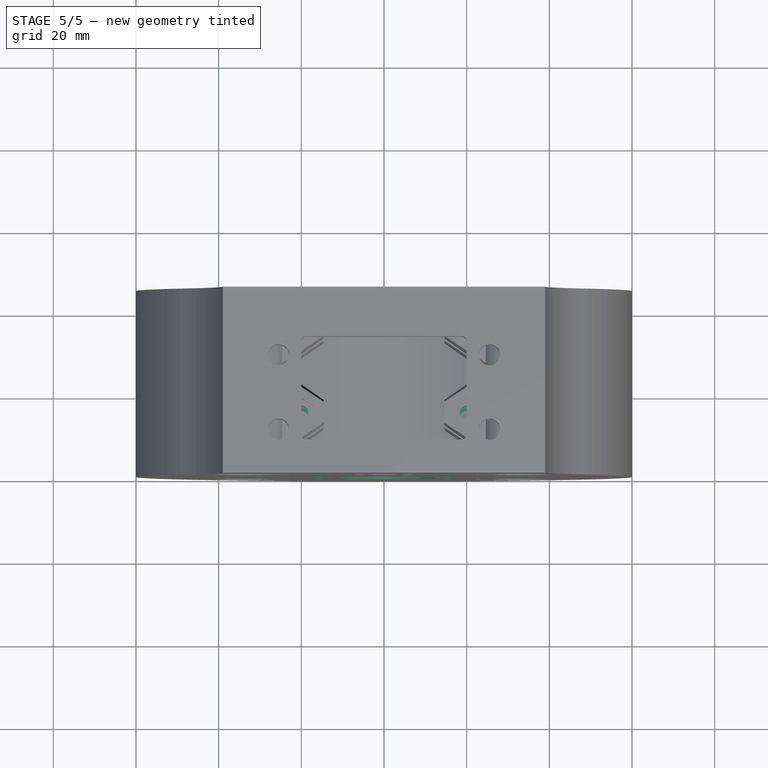
[diagram: stage 5 of 5 — top view after this stage's code; geometry added in this stage tinted green]
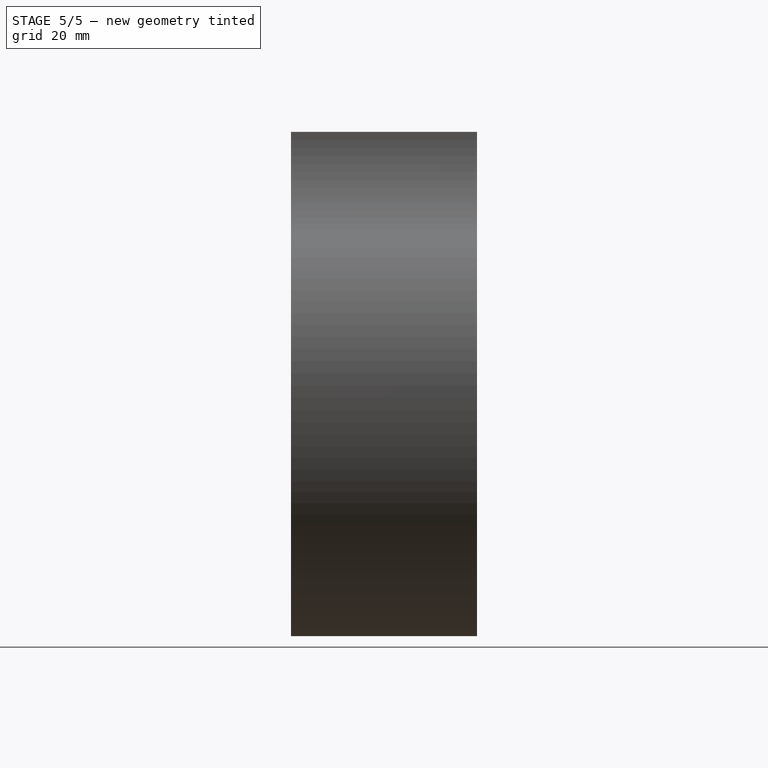
[diagram: stage 5 of 5 — right view after this stage's code; geometry added in this stage tinted green]
FEATURE [Sketcher::SketchObject] Sketch008
  ExternalGeometry = -> [Mirrored004]
  FullyConstrained = true
  MapMode = 5
  Placement = pos=(0,-6.2e-15,-28.0876) rot=(0,0,1;0rad)
  Support = -> [Mirrored004]
  sketch-geometry (4):
    g0: Circle CenterX=-20 CenterY=36.0171 CenterZ=0 NormalX=0 NormalY=0 NormalZ=1 AngleXU=0 Radius=3.2
    g1: Circle CenterX=-20 CenterY=15.0221 CenterZ=0 NormalX=0 NormalY=0 NormalZ=1 AngleXU=0 Radius=3.2
    g2: Circle CenterX=20 CenterY=15.0221 CenterZ=0 NormalX=0 NormalY=0 NormalZ=1 AngleXU=0 Radius=3.2
    g3: Circle CenterX=20 CenterY=36.0171 CenterZ=0 NormalX=0 NormalY=0 NormalZ=1 AngleXU=0 Radius=3.2
  constraints (8):
    c: Coincident(g0,g-3)
    c: Coincident(g1,g-4)
    c: Coincident(g2,g-5)
    c: Coincident(g3,g-6)
    c: Equal(g0,g1)
    c: Equal(g1,g2)
    c: Equal(g2,g3)
    c: Radius(g0) = 3.2
FEATURE [PartDesign::Pocket] Pocket005
  BaseFeature = -> Mirrored004
  Length = 2.5
  Length2 = 100
  Profile = -> Sketch008
  Type = 0
FEATURE [PartDesign::Mirrored] Mirrored005
  BaseFeature = -> Pocket005
  MirrorPlane = -> XY_Plane
  Originals = -> [Pocket005]
FEATURE [Sketcher::SketchObject] Sketch009
  ExternalGeometry = -> [Mirrored005]
  FullyConstrained = true
  MapMode = 5
  Placement = pos=(0,0,0) rot=(1,0,0;1.5708rad)
  Support = -> [Mirrored005]
  sketch-geometry (20):
    g0: ArcOfCircle CenterX=-15.5 CenterY=5.5 CenterZ=0 NormalX=0 NormalY=0 NormalZ=1 AngleXU=0 Radius=1.6 StartAngle=0 EndAngle=3.14159
    g1: ArcOfCircle CenterX=-15.5 CenterY=3.5 CenterZ=0 NormalX=0 NormalY=0 NormalZ=1 AngleXU=0 Radius=1.6 StartAngle=3.14159 EndAngle=6.28319
    g2: LineSegment StartX=-17.1 StartY=5.5 StartZ=0 EndX=-17.1 EndY=3.5 EndZ=0
    g3: LineSegment StartX=-13.9 StartY=5.5 StartZ=0 EndX=-13.9 EndY=3.5 EndZ=0
    g4: ArcOfCircle CenterX=15.5 CenterY=5.5 CenterZ=0 NormalX=0 NormalY=0 NormalZ=1 AngleXU=0 Radius=1.6 StartAngle=3e-16 EndAngle=3.14159
    g5: ArcOfCircle CenterX=15.5 CenterY=3.5 CenterZ=0 NormalX=0 NormalY=0 NormalZ=1 AngleXU=0 Radius=1.6 StartAngle=3.14159 EndAngle=6.28319
    g6: LineSegment StartX=13.9 StartY=5.5 StartZ=0 EndX=13.9 EndY=3.5 EndZ=0
    g7: LineSegment StartX=17.1 StartY=5.5 StartZ=0 EndX=17.1 EndY=3.5 EndZ=0
    g8: ArcOfCircle CenterX=-15.5 CenterY=-25.5 CenterZ=0 NormalX=0 NormalY=0 NormalZ=1 AngleXU=0 Radius=1.6 StartAngle=6e-16 EndAngle=3.14159
    g9: ArcOfCircle CenterX=-15.5 CenterY=-27.5 CenterZ=0 NormalX=0 NormalY=0 NormalZ=1 AngleXU=0 Radius=1.6 StartAngle=3.14159 EndAngle=6.28319
    g10: LineSegment StartX=-17.1 StartY=-25.5 StartZ=0 EndX=-17.1 EndY=-27.5 EndZ=0
    g11: LineSegment StartX=-13.9 StartY=-25.5 StartZ=0 EndX=-13.9 EndY=-27.5 EndZ=0
    g12: ArcOfCircle CenterX=15.5 CenterY=-25.5 CenterZ=0 NormalX=0 NormalY=0 NormalZ=1 AngleXU=0 Radius=1.6 StartAngle=1e-15 EndAngle=3.14159
    g13: ArcOfCircle CenterX=15.5 CenterY=-27.5 CenterZ=0 NormalX=0 NormalY=0 NormalZ=1 AngleXU=0 Radius=1.6 StartAngle=3.14159 EndAngle=6.28319
    g14: LineSegment StartX=13.9 StartY=-25.5 StartZ=0 EndX=13.9 EndY=-27.5 EndZ=0
    g15: LineSegment StartX=17.1 StartY=-25.5 StartZ=0 EndX=17.1 EndY=-27.5 EndZ=0
    g16: ArcOfCircle CenterX=0 CenterY=-10 CenterZ=0 NormalX=0 NormalY=0 NormalZ=1 AngleXU=0 Radius=12.5 StartAngle=1e-16 EndAngle=3.14159
    g17: ArcOfCircle CenterX=-5e-16 CenterY=-12 CenterZ=0 NormalX=0 NormalY=0 NormalZ=1 AngleXU=0 Radius=12.5 StartAngle=3.14159 EndAngle=6.28319
    g18: LineSegment StartX=-12.5 StartY=-10 StartZ=0 EndX=-12.5 EndY=-12 EndZ=0
    g19: LineSegment StartX=12.5 StartY=-10 StartZ=0 EndX=12.5 EndY=-12 EndZ=0
  constraints (45):
    c: Tangent(g0,g3) = 1.5708
    c: Tangent(g0,g2) = -1.5708
    c: Tangent(g2,g1) = -1.5708
    c: Tangent(g3,g1) = 1.5708
    c: Vertical(g2)
    c: Equal(g0,g1)
    c: Coincident(g0,g-3)
    c: Tangent(g4,g7) = 1.5708
    c: Tangent(g4,g6) = -1.5708
    c: Tangent(g6,g5) = -1.5708
    c: Tangent(g7,g5) = 1.5708
    c: Vertical(g6)
    c: Equal(g4,g5)
    c: Coincident(g4,g-4)
    c: Tangent(g8,g11) = 1.5708
    c: Tangent(g8,g10) = -1.5708
    c: Tangent(g10,g9) = -1.5708
    c: Tangent(g11,g9) = 1.5708
    c: Vertical(g10)
    c: Equal(g8,g9)
    c: Coincident(g8,g-5)
    c: Tangent(g12,g15) = 1.5708
    c: Tangent(g12,g14) = -1.5708
    c: Tangent(g14,g13) = -1.5708
    c: Tangent(g15,g13) = 1.5708
    c: Vertical(g14)
    c: Equal(g12,g13)
    c: Coincident(g12,g-6)
    c: Tangent(g16,g19) = 1.5708
    c: Tangent(g16,g18) = -1.5708
    c: Tangent(g18,g17) = -1.5708
    c: Tangent(g19,g17) = 1.5708
    c: Vertical(g18)
    c: Equal(g16,g17)
    c: Coincident(g16,g-7)
    c: Equal(g3,g6)
    c: Equal(g6,g11)
    c: Equal(g11,g18)
    c: Equal(g18,g14)
    c: DistanceY(g7,g7) = 2
    c: Radius(g4) = 1.6
    c: PointOnObject(g-7,g16)
    c: Equal(g1,g8)
    c: Equal(g8,g5)
    c: Equal(g5,g12)
FEATURE [PartDesign::Pocket] Pocket006
  BaseFeature = -> Mirrored005
  Length = 6
  Length2 = 100
  Profile = -> Sketch009
  Type = 0
FEATURE [PartDesign::Body] Body
  BaseFeature = -> Part__Feature
  Group = -> [BaseFeature,Sketch,Pocket,Mirrored,Pocket001,Sketch001,Pocket002,Sketch002,Pad,Mirrored001,DatumPlane,Sketch003,DatumLine,DatumLine001,Sketch004,Groove,Mirrored002,Sketch005,Groove001,Mirrored003,Sketch006,Pocket003,Sketch007,Pocket004,Mirrored004,Sketch008,Pocket005,Mirrored005,Sketch009,Pocket006]
  Origin = -> Origin
  Tip = -> Pocket006
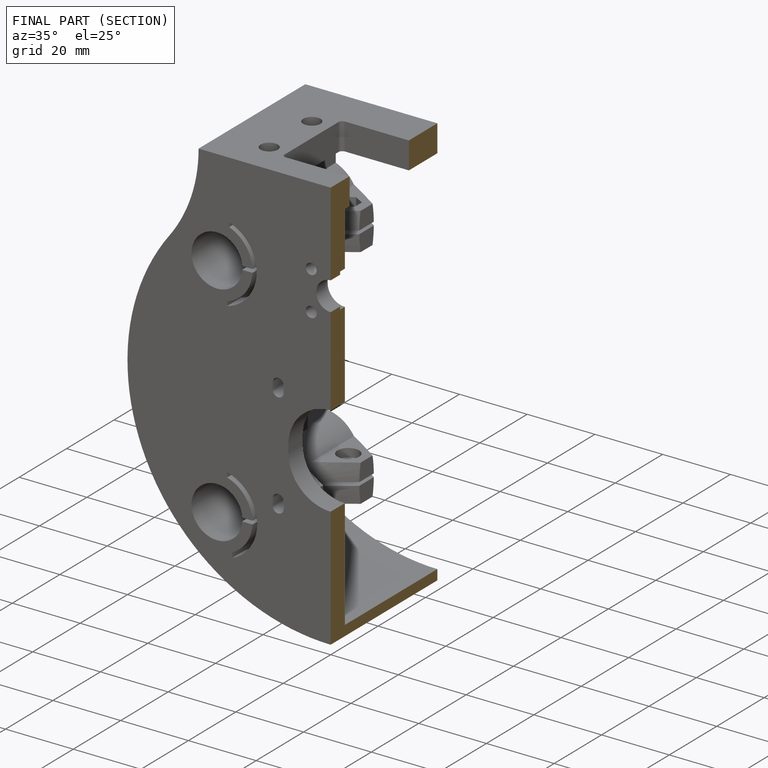
[diagram: finished part — half-section view (interior)]
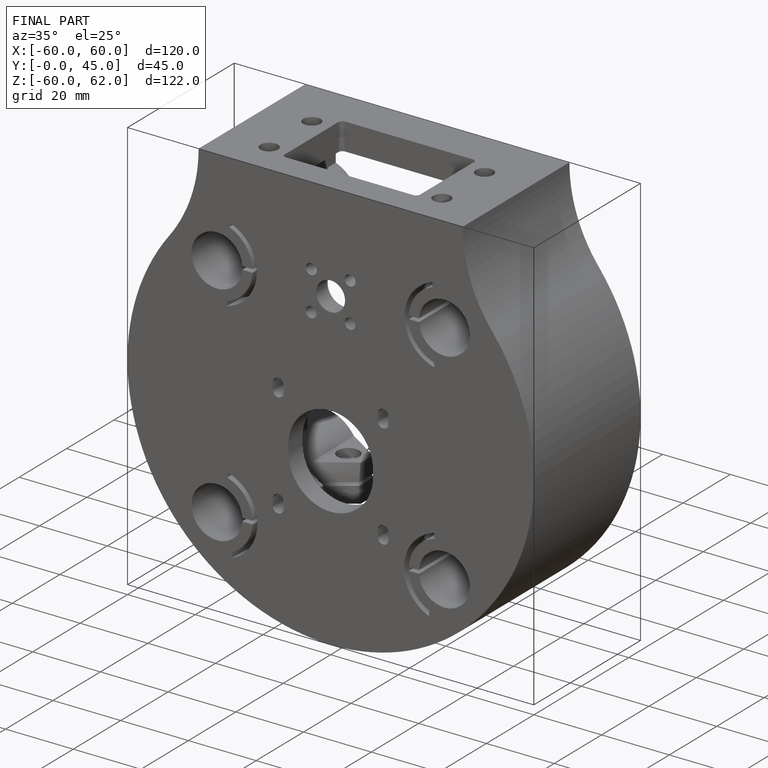
[diagram: finished part — iso view with bounding-box wireframe]
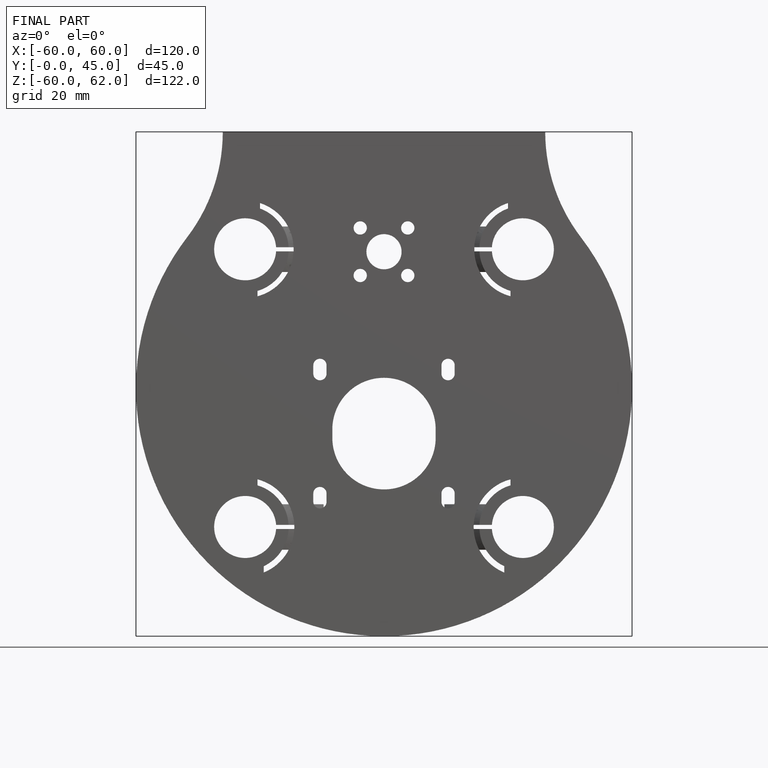
[diagram: finished part — front view with bounding-box wireframe]
